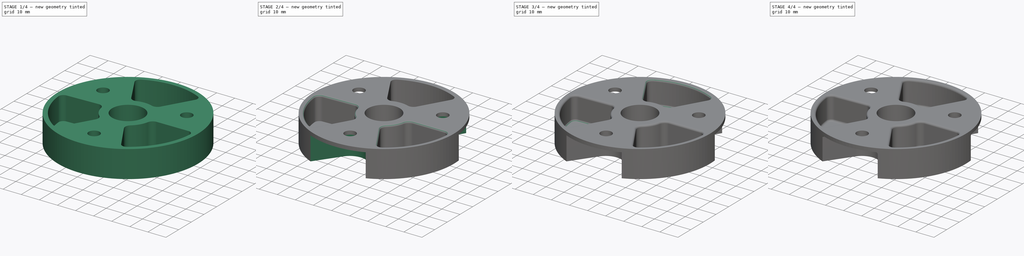
[diagram: build sequence overview — one tinted view per stage of 4, left to right]
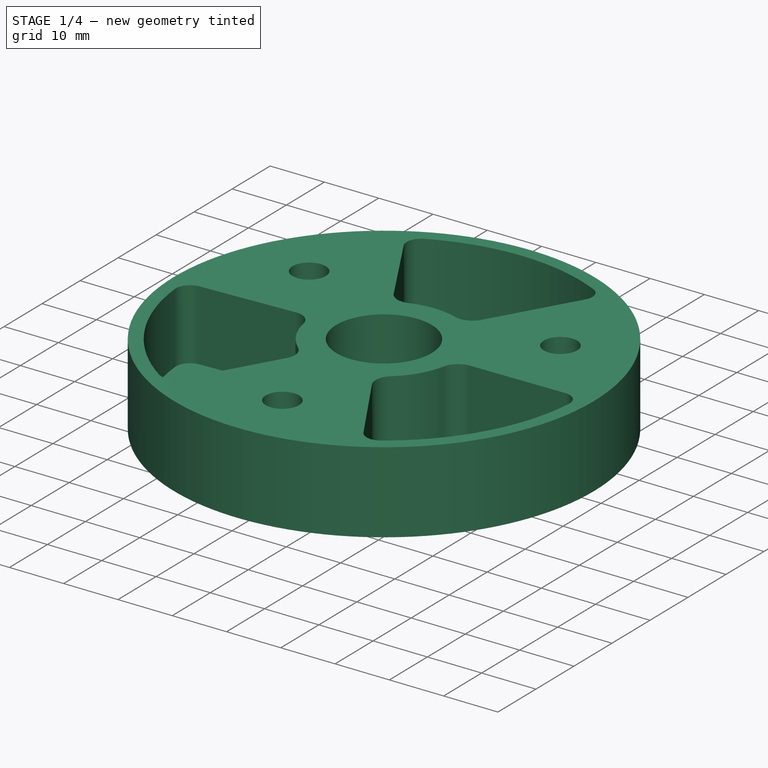
[diagram: stage 1 of 4 — iso view after this stage's code; geometry added in this stage tinted green]
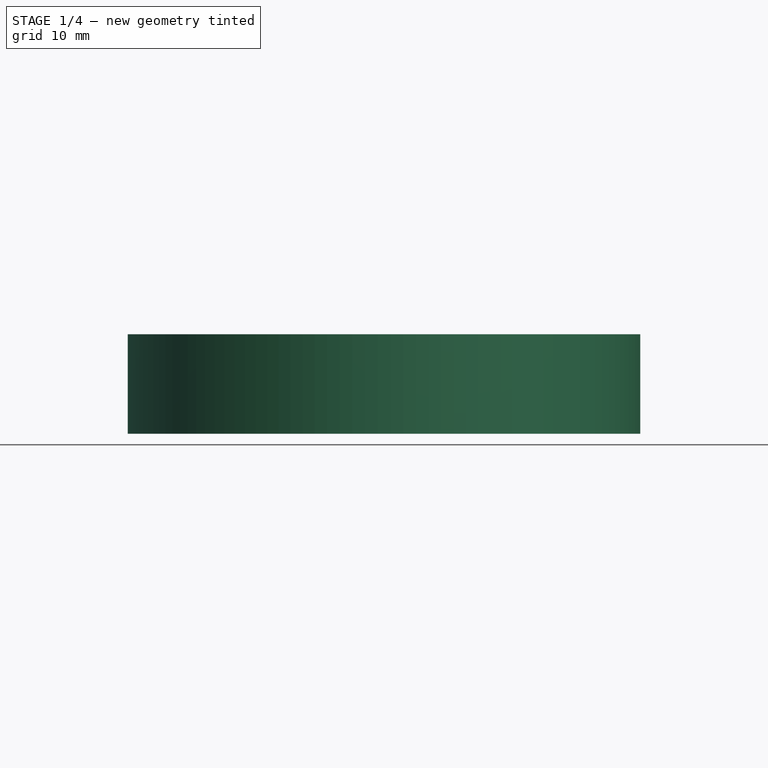
[diagram: stage 1 of 4 — front view after this stage's code; geometry added in this stage tinted green]
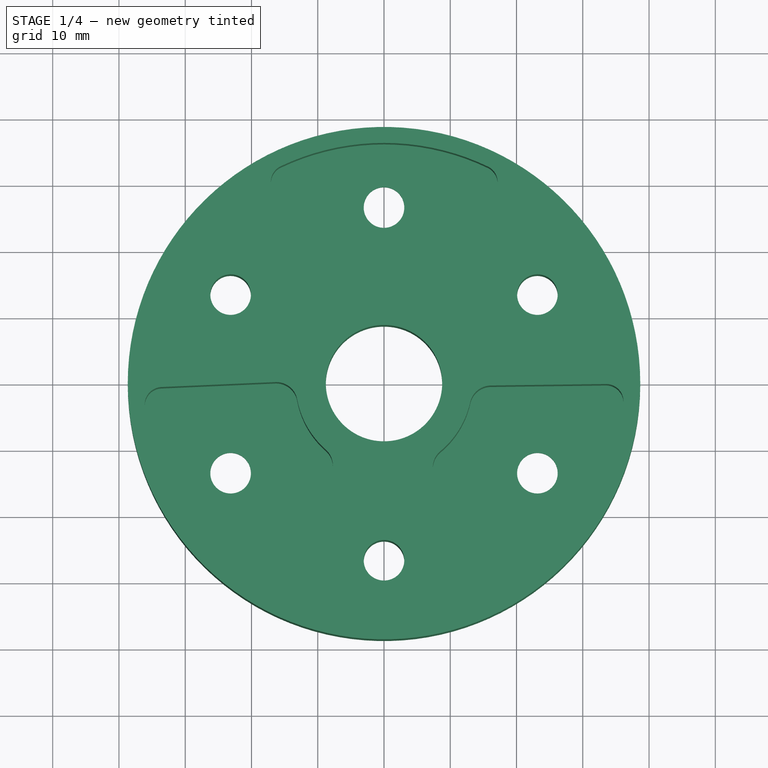
[diagram: stage 1 of 4 — top view after this stage's code; geometry added in this stage tinted green]
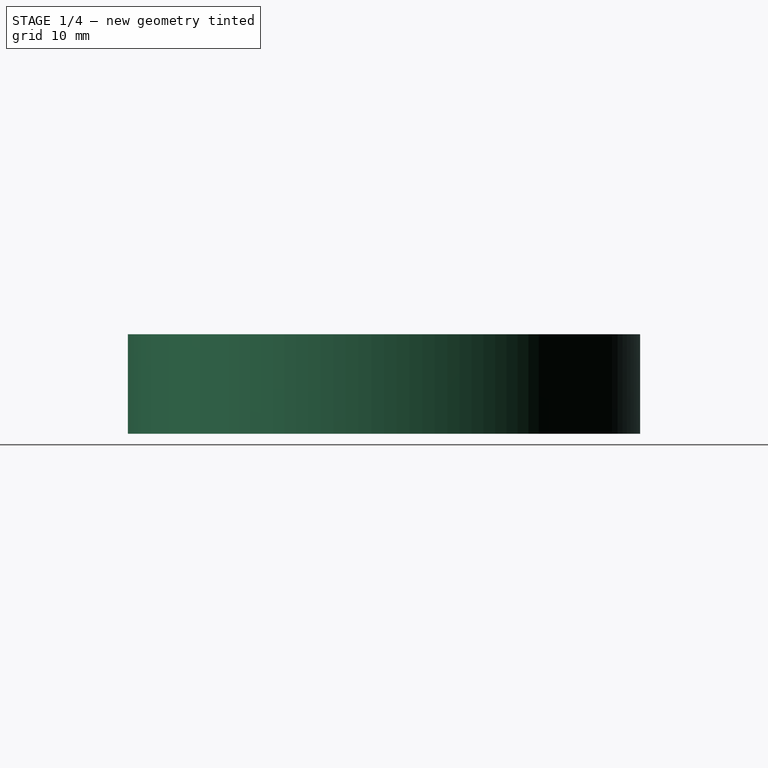
[diagram: stage 1 of 4 — right view after this stage's code; geometry added in this stage tinted green]
FCSTD DOCUMENT  (FreeCAD 0.21R33771 (Git))
Label: ex72
License: All rights reserved
LicenseURL: https://en.wikipedia.org/wiki/All_rights_reserved
objects: PartDesign::Fillet×9, Sketcher::SketchObject×6, PartDesign::Pocket×4, PartDesign::Pad×1, PartDesign::Body×1
note: 35 computed .brp shape members not serialized (recipe doc carries the construction recipe); baked Part::Feature solids carry a one-line shape summary decoded from their .brp

FEATURE [Sketcher::SketchObject] Sketch
  FullyConstrained = false
  MapMode = 5
  Support = -> [XY_Plane]
  sketch-geometry (1):
    g0: Circle CenterX=0 CenterY=0 CenterZ=0 NormalX=0 NormalY=0 NormalZ=1 AngleXU=0 Radius=38.6711
  constraints (1):
    c: Coincident(g0,g-1)
FEATURE [PartDesign::Pad] Pad
  Direction = (0,0,1)
  Length = 15
  Length2 = 10
  Profile = -> Sketch
  ReferenceAxis = -> Sketch [N_Axis]
  Type = 0
FEATURE [Sketcher::SketchObject] Sketch001
  FullyConstrained = false
  MapMode = 5
  Placement = pos=(0,0,15) rot=(0,0,1;0rad)
  Support = -> [Pad]
  sketch-geometry (13):
    g0: LineSegment StartX=23.15 StartY=-13.3657 StartZ=0 EndX=23.15 EndY=13.3657 EndZ=0
    g1: LineSegment StartX=23.15 StartY=13.3657 StartZ=0 EndX=0 EndY=26.7313 EndZ=0
    g2: LineSegment StartX=0 StartY=26.7313 StartZ=0 EndX=-23.15 EndY=13.3657 EndZ=0
    g3: LineSegment StartX=-23.15 StartY=13.3657 StartZ=0 EndX=-23.15 EndY=-13.3657 EndZ=0
    g4: LineSegment StartX=-23.15 StartY=-13.3657 StartZ=0 EndX=0 EndY=-26.7313 EndZ=0
    g5: LineSegment StartX=0 StartY=-26.7313 StartZ=0 EndX=23.15 EndY=-13.3657 EndZ=0
    g6: Circle CenterX=0 CenterY=0 CenterZ=0 NormalX=0 NormalY=0 NormalZ=1 AngleXU=0 Radius=26.7313
    g7: Circle CenterX=-23.15 CenterY=13.3657 CenterZ=0 NormalX=0 NormalY=0 NormalZ=1 AngleXU=0 Radius=3.06241
    g8: Circle CenterX=0 CenterY=26.7313 CenterZ=0 NormalX=0 NormalY=0 NormalZ=1 AngleXU=0 Radius=3.06241
    g9: Circle CenterX=23.15 CenterY=13.3657 CenterZ=0 NormalX=0 NormalY=0 NormalZ=1 AngleXU=0 Radius=3.06241
    g10: Circle CenterX=23.15 CenterY=-13.3657 CenterZ=0 NormalX=0 NormalY=0 NormalZ=1 AngleXU=0 Radius=3.06241
    g11: Circle CenterX=0 CenterY=-26.7313 CenterZ=0 NormalX=0 NormalY=0 NormalZ=1 AngleXU=0 Radius=3.06241
    g12: Circle CenterX=-23.15 CenterY=-13.3657 CenterZ=0 NormalX=0 NormalY=0 NormalZ=1 AngleXU=0 Radius=3.06241
  constraints (26):
    c: Coincident(g0,g1)
    c: Coincident(g1,g2)
    c: Coincident(g2,g3)
    c: Coincident(g3,g4)
    c: Coincident(g4,g5)
    c: Coincident(g5,g0)
    c: Equal(g0, g1-g5) x5
    c: PointOnObject(g0,g6)
    c: PointOnObject(g1,g6)
    c: PointOnObject(g2,g6)
    c: PointOnObject(g3,g6)
    c: PointOnObject(g4,g6)
    c: PointOnObject(g5,g6)
    c: Coincident(g6,g-1)
    c: Coincident(g7,g2)
    c: Coincident(g8,g1)
    c: Coincident(g9,g0)
    c: Coincident(g10,g0)
    c: Coincident(g11,g4)
    c: Coincident(g12,g3)
    c: Equal(g12,g7)
    c: Equal(g7,g8)
    c: Equal(g8,g9)
    c: Equal(g9,g10)
    c: Equal(g10,g11)
    c: PointOnObject(g8,g-2)
FEATURE [PartDesign::Pocket] Pocket
  BaseFeature = -> Pad
  Direction = (0,0,-1)
  Length = 5
  Length2 = 5
  Profile = -> Sketch001
  ReferenceAxis = -> Sketch001 [N_Axis]
  Type = 1
FEATURE [Sketcher::SketchObject] Sketch002
  FullyConstrained = false
  MapMode = 5
  Placement = pos=(0,0,15) rot=(0,0,1;0rad)
  Support = -> [Pocket]
  sketch-geometry (24):
    g0: ArcOfCircle CenterX=0 CenterY=0 CenterZ=0 NormalX=0 NormalY=0 NormalZ=1 AngleXU=0 Radius=13.3346 StartAngle=3.32657 EndAngle=3.99086
    g1: ArcOfCircle CenterX=0 CenterY=0 CenterZ=0 NormalX=0 NormalY=0 NormalZ=1 AngleXU=0 Radius=36.26 StartAngle=3.23728 EndAngle=4.10921
    g2: LineSegment StartX=8.14916 StartY=14.0426 StartZ=0 EndX=16.7969 EndY=29.0208 EndZ=0
    g3: LineSegment StartX=-8.06535 StartY=14.0711 StartZ=0 EndX=-16.7182 EndY=29.0583 EndZ=0
    g4: LineSegment StartX=-16.4003 StartY=0.162494 StartZ=0 EndX=-33.5919 EndY=-0.586814 EndZ=0
    g5: LineSegment StartX=-8.14866 StartY=-14.0244 StartZ=0 EndX=-16.8012 EndY=-29.011 EndZ=0
    g6: LineSegment StartX=16.1117 StartY=-0.358575 StartZ=0 EndX=33.4834 EndY=-0.130577 EndZ=0
    g7: LineSegment StartX=16.6376 StartY=-29.1646 StartZ=0 EndX=7.82609 EndY=-14.355 EndZ=0
    g8: ArcOfCircle CenterX=0 CenterY=0 CenterZ=0 NormalX=0 NormalY=0 NormalZ=1 AngleXU=0 Radius=36.26 StartAngle=1.12436 EndAngle=2.01464
    g9: ArcOfCircle CenterX=0 CenterY=0 CenterZ=0 NormalX=0 NormalY=0 NormalZ=1 AngleXU=0 Radius=36.26 StartAngle=5.30904 EndAngle=6.20105
    g10: ArcOfCircle CenterX=0 CenterY=0 CenterZ=0 NormalX=0 NormalY=0 NormalZ=1 AngleXU=0 Radius=13.3346 StartAngle=1.24014 EndAngle=1.8961
    g11: ArcOfCircle CenterX=0 CenterY=0 CenterZ=0 NormalX=0 NormalY=0 NormalZ=1 AngleXU=0 Radius=13.3346 StartAngle=5.40655 EndAngle=6.06589
    g12: ArcOfCircle CenterX=16.1538 CenterY=-3.56645 CenterZ=0 NormalX=0 NormalY=0 NormalZ=1 AngleXU=0 Radius=3.20815 StartAngle=1.58392 EndAngle=2.9243
    g13: ArcOfCircle CenterX=10.5831 CenterY=-12.7146 CenterZ=0 NormalX=0 NormalY=0 NormalZ=1 AngleXU=0 Radius=3.20815 StartAngle=2.26496 EndAngle=3.67832
    g14: ArcOfCircle CenterX=33.5179 CenterY=-2.75907 CenterZ=0 NormalX=0 NormalY=0 NormalZ=1 AngleXU=0 Radius=2.62872 StartAngle=6.20105 EndAngle=7.86711
    g15: ArcOfCircle CenterX=18.8967 CenterY=-27.8205 CenterZ=0 NormalX=0 NormalY=0 NormalZ=1 AngleXU=0 Radius=2.62872 StartAngle=3.67832 EndAngle=5.30904
    g16: ArcOfCircle CenterX=-33.4774 CenterY=-3.21304 CenterZ=0 NormalX=0 NormalY=0 NormalZ=1 AngleXU=0 Radius=2.62872 StartAngle=1.61435 EndAngle=3.23728
    g17: ArcOfCircle CenterX=-19.0777 CenterY=-27.6966 CenterZ=0 NormalX=0 NormalY=0 NormalZ=1 AngleXU=0 Radius=2.62872 StartAngle=4.10921 EndAngle=5.75959
    g18: ArcOfCircle CenterX=-10.927 CenterY=-12.4203 CenterZ=0 NormalX=0 NormalY=0 NormalZ=1 AngleXU=0 Radius=3.20815 StartAngle=5.75959 EndAngle=7.13246
    g19: ArcOfCircle CenterX=-16.2606 CenterY=-3.04261 CenterZ=0 NormalX=0 NormalY=0 NormalZ=1 AngleXU=0 Radius=3.20815 StartAngle=0.184977 EndAngle=1.61435
    g20: ArcOfCircle CenterX=-14.4417 CenterY=30.3727 CenterZ=0 NormalX=0 NormalY=0 NormalZ=1 AngleXU=0 Radius=2.62872 StartAngle=2.01464 EndAngle=3.66519
    g21: ArcOfCircle CenterX=-5.28702 CenterY=15.6752 CenterZ=0 NormalX=0 NormalY=0 NormalZ=1 AngleXU=0 Radius=3.20815 StartAngle=3.66519 EndAngle=5.03769
    g22: ArcOfCircle CenterX=5.37082 CenterY=15.6467 CenterZ=0 NormalX=0 NormalY=0 NormalZ=1 AngleXU=0 Radius=3.20815 StartAngle=4.38173 EndAngle=5.75959
    g23: ArcOfCircle CenterX=14.5203 CenterY=30.3352 CenterZ=0 NormalX=0 NormalY=0 NormalZ=1 AngleXU=0 Radius=2.62872 StartAngle=5.75959 EndAngle=7.40755
  constraints (49):
    c: Coincident(g0,g-1)
    c: Coincident(g1,g0)
    c: Angle(g2,g-2) = 0.523599
    c: Angle(g-2,g3) = 0.523599
    c: Angle(g-2,g5) = 2.61799
    c: Angle(g7,g6) = 1.0472
    c: Radius(g1) = 36.26
    c: Equal(g1,g8)
    c: Coincident(g1,g8)
    c: Equal(g1,g9)
    c: Coincident(g1,g9)
    c: Equal(g0,g10)
    c: Coincident(g0,g10)
    c: Equal(g0,g11)
    c: Coincident(g0,g11)
    c: Tangent(g11,g12) = 1.5708
    c: Tangent(g6,g12) = 1.5708
    c: Tangent(g7,g13) = 1.5708
    c: Tangent(g11,g13) = 1.5708
    c: Tangent(g9,g14) = -1.5708
    c: Tangent(g6,g14) = 1.5708
    c: Tangent(g7,g15) = 1.5708
    c: Tangent(g9,g15) = -1.5708
    c: Tangent(g4,g16) = -1.5708
    c: Tangent(g1,g16) = -1.5708
    c: Tangent(g1,g17) = -1.5708
    c: Tangent(g5,g17) = 1.5708
    c: Tangent(g0,g18) = 1.5708
    c: Tangent(g5,g18) = 1.5708
    c: Tangent(g4,g19) = -1.5708
    c: Tangent(g0,g19) = 1.5708
    c: Tangent(g8,g20) = -1.5708
    c: Tangent(g3,g20) = 1.5708
    c: Tangent(g3,g21) = 1.5708
    c: Tangent(g10,g21) = 1.5708
    c: Tangent(g2,g22) = -1.5708
    c: Tangent(g10,g22) = 1.5708
    c: Tangent(g8,g23) = -1.5708
    c: Tangent(g2,g23) = -1.5708
    c: Equal(g20,g23)
    c: Equal(g21,g22)
    c: Equal(g19,g18)
    c: Equal(g18,g13)
    c: Equal(g13,g12)
    c: Equal(g12,g22)
    c: Equal(g16,g17)
    c: Equal(g17,g15)
    c: Equal(g15,g14)
    c: Equal(g14,g23)
FEATURE [Sketcher::SketchObject] Sketch003
  FullyConstrained = false
  MapMode = 5
  Placement = pos=(0,0,15) rot=(0,0,1;0rad)
  Support = -> [Pocket]
  sketch-geometry (8):
    g0: Circle CenterX=0 CenterY=0 CenterZ=0 NormalX=0 NormalY=0 NormalZ=1 AngleXU=0 Radius=12.8895
    g1: Circle CenterX=0 CenterY=0 CenterZ=0 NormalX=0 NormalY=0 NormalZ=1 AngleXU=0 Radius=36.26
    g2: LineSegment StartX=0 StartY=0 StartZ=0 EndX=18.13 EndY=31.4021 EndZ=0
    g3: LineSegment StartX=0 StartY=0 StartZ=0 EndX=-18.13 EndY=31.4021 EndZ=0
    g4: LineSegment StartX=0 StartY=0 StartZ=0 EndX=-36.26 EndY=0 EndZ=0
    g5: LineSegment StartX=0 StartY=0 StartZ=0 EndX=-18.13 EndY=-31.4021 EndZ=0
    g6: LineSegment StartX=0 StartY=0 StartZ=0 EndX=36.26 EndY=0 EndZ=0
    g7: LineSegment StartX=18.13 StartY=-31.4021 StartZ=0 EndX=0 EndY=0 EndZ=0
  constraints (21):
    c: Coincident(g0,g-1)
    c: Coincident(g1,g0)
    c: Coincident(g2,g0)
    c: Coincident(g3,g0)
    c: Angle(g2,g-2) = 0.523599
    c: Angle(g-2,g3) = 0.523599
    c: Coincident(g4,g0)
    c: PointOnObject(g4,g-1)
    c: Coincident(g5,g0)
    c: Angle(g-2,g5) = 2.61799
    c: Coincident(g6,g0)
    c: PointOnObject(g6,g-1)
    c: Coincident(g7,g0)
    c: Angle(g7,g6) = 1.0472
    c: Radius(g1) = 36.26
    c: PointOnObject(g2,g1)
    c: PointOnObject(g3,g1)
    c: PointOnObject(g4,g1)
    c: PointOnObject(g5,g1)
    c: PointOnObject(g7,g1)
    c: PointOnObject(g6,g1)
FEATURE [PartDesign::Pocket] Pocket001
  BaseFeature = -> Pocket
  Direction = (0,0,-1)
  Length = 13
  Length2 = 5
  Profile = -> Sketch002
  ReferenceAxis = -> Sketch002 [N_Axis]
  Type = 0
FEATURE [Sketcher::SketchObject] Sketch004
  FullyConstrained = false
  MapMode = 5
  Placement = pos=(0,0,15) rot=(0,0,1;0rad)
  Support = -> [Pocket001]
  sketch-geometry (1):
    g0: Circle CenterX=0 CenterY=0 CenterZ=0 NormalX=0 NormalY=0 NormalZ=1 AngleXU=0 Radius=8.7812
  constraints (1):
    c: Coincident(g0,g-1)
FEATURE [PartDesign::Pocket] Pocket002
  BaseFeature = -> Pocket001
  Direction = (0,0,-1)
  Length = 5
  Length2 = 5
  Profile = -> Sketch004
  ReferenceAxis = -> Sketch004 [N_Axis]
  Type = 1
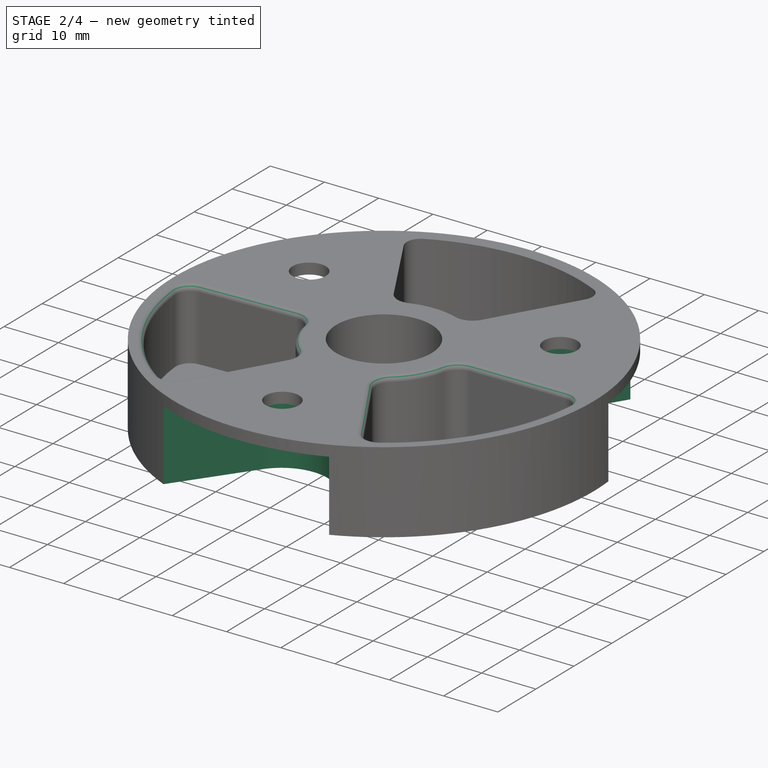
[diagram: stage 2 of 4 — iso view after this stage's code; geometry added in this stage tinted green]
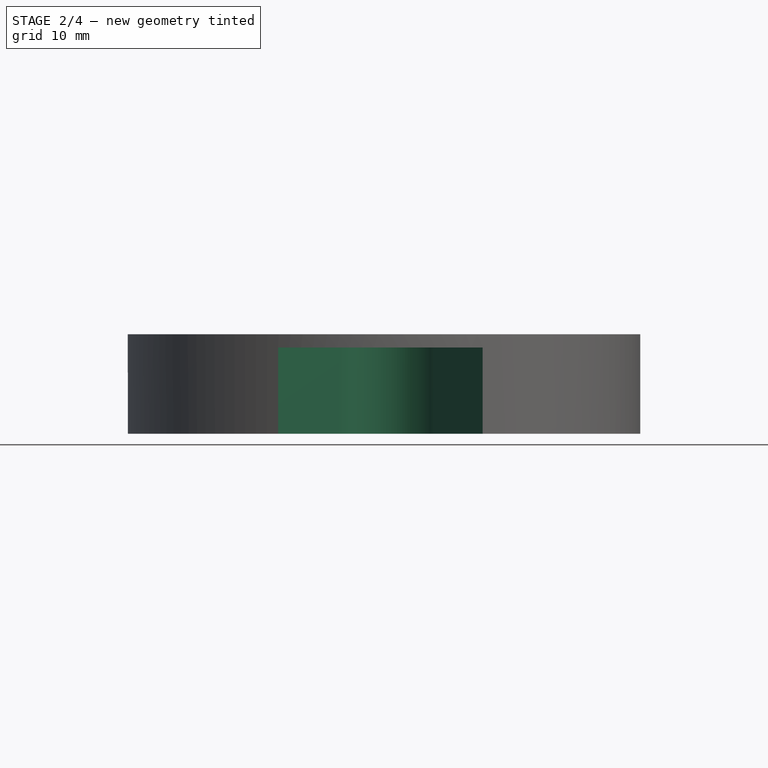
[diagram: stage 2 of 4 — front view after this stage's code; geometry added in this stage tinted green]
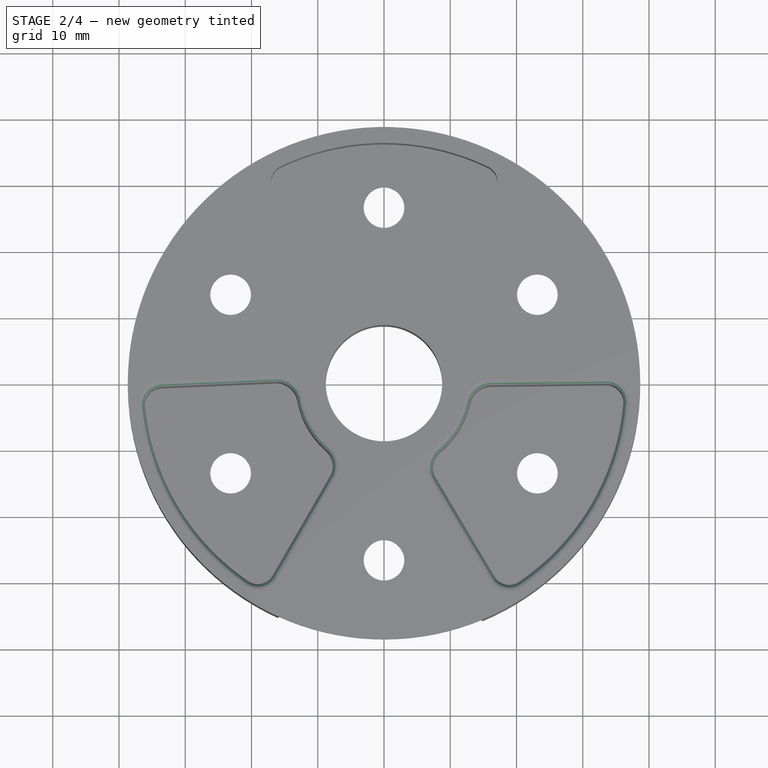
[diagram: stage 2 of 4 — top view after this stage's code; geometry added in this stage tinted green]
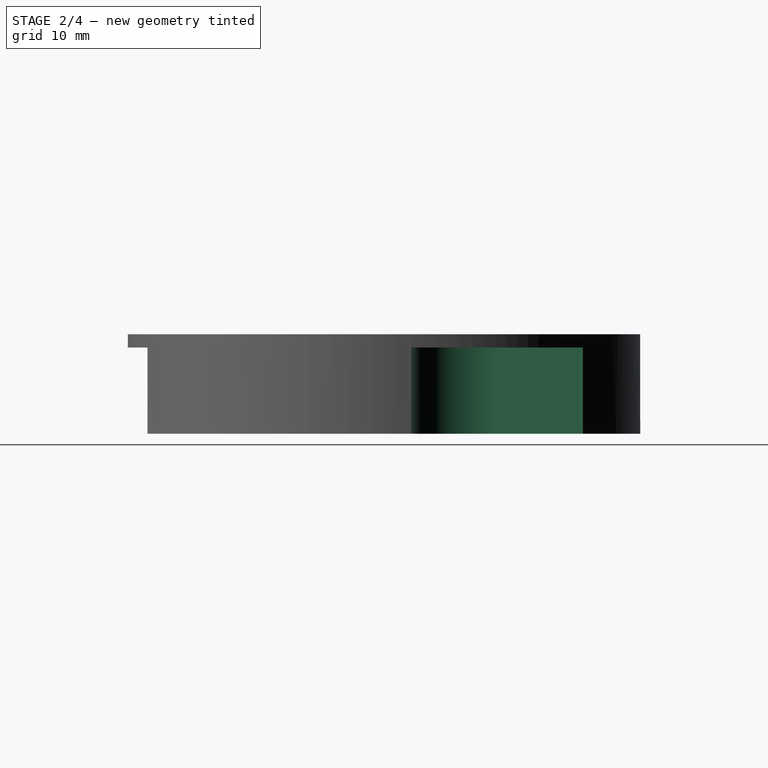
[diagram: stage 2 of 4 — right view after this stage's code; geometry added in this stage tinted green]
FEATURE [Sketcher::SketchObject] Sketch005
  AttachmentOffset = pos=(0,0,-2) rot=(0,0,1;0rad)
  FullyConstrained = false
  MapMode = 5
  Placement = pos=(0,0,13) rot=(0,0,1;0rad)
  Support = -> [Pad]
  sketch-geometry (19):
    g0: LineSegment StartX=23.2179 StartY=-13.9556 StartZ=0 EndX=23.8828 EndY=13.0148 EndZ=0
    g1: LineSegment StartX=23.8828 StartY=13.0148 StartZ=0 EndX=0.924022 EndY=27.1831 EndZ=0
    g2: LineSegment StartX=-0.816683 StartY=27.9095 StartZ=0 EndX=-23.618 EndY=13.4893 EndZ=0
    g3: LineSegment StartX=-23.618 StartY=13.4893 StartZ=0 EndX=-23.618 EndY=-13.4893 EndZ=0
    g4: LineSegment StartX=-21.8833 StartY=-11.6098 StartZ=0 EndX=0.135827 EndY=-27.1984 EndZ=0
    g5: LineSegment StartX=0.135827 StartY=-27.1984 StartZ=0 EndX=23.4956 EndY=-13.7015 EndZ=0
    g6: Circle CenterX=0 CenterY=0 CenterZ=0 NormalX=0 NormalY=0 NormalZ=1 AngleXU=0 Radius=27.1988
    g7: ArcOfCircle CenterX=-23.618 CenterY=13.4893 CenterZ=0 NormalX=0 NormalY=0 NormalZ=1 AngleXU=0 Radius=8.51469 StartAngle=4.71239 EndAngle=6.84711
    g8: ArcOfCircle CenterX=23.8828 CenterY=13.0148 CenterZ=0 NormalX=0 NormalY=0 NormalZ=1 AngleXU=0 Radius=8.51469 StartAngle=2.55253 EndAngle=4.68774
    g9: ArcOfCircle CenterX=0.135827 CenterY=-27.1984 CenterZ=0 NormalX=0 NormalY=0 NormalZ=1 AngleXU=0 Radius=8.51469 StartAngle=0.523926 EndAngle=2.52555
    g10: LineSegment StartX=-16.4217 StartY=18.0405 StartZ=0 EndX=-28.4228 EndY=37.0167 EndZ=0
    g11: LineSegment StartX=-23.618 StartY=4.97461 StartZ=0 EndX=-46.4041 EndY=4.97461 EndZ=0
    g12: LineSegment StartX=16.8031 StartY=17.7454 StartZ=0 EndX=28.61 EndY=36.8724 EndZ=0
    g13: LineSegment StartX=23.673 StartY=4.50269 StartZ=0 EndX=46.5035 EndY=3.9399 EndZ=0
    g14: LineSegment StartX=-6.8136 StartY=-22.2785 StartZ=0 EndX=-20.6977 EndY=-41.89 EndZ=0
    g15: LineSegment StartX=7.50837 StartY=-22.9387 StartZ=0 EndX=18.9082 EndY=-42.6688 EndZ=0
    g16: LineSegment StartX=-28.4228 StartY=37.0167 StartZ=0 EndX=-46.4041 EndY=4.97461 EndZ=0
    g17: LineSegment StartX=-20.6977 StartY=-41.89 StartZ=0 EndX=18.9082 EndY=-42.6688 EndZ=0
    g18: LineSegment StartX=28.61 StartY=36.8724 StartZ=0 EndX=46.5035 EndY=3.9399 EndZ=0
  constraints (41):
    c: Coincident(g0,g1)
    c: Coincident(g2,g3)
    c: Coincident(g4,g5)
    c: Equal(g0, g1-g5) x5
    c: PointOnObject(g0,g6)
    c: PointOnObject(g1,g6)
    c: PointOnObject(g2,g6)
    c: PointOnObject(g3,g6)
    c: PointOnObject(g4,g6)
    c: PointOnObject(g5,g6)
    c: Coincident(g6,g-1)
    c: Coincident(g7,g2)
    c: Coincident(g8,g0)
    c: Coincident(g9,g4)
    c: Equal(g9,g8)
    c: Equal(g8,g7)
    c: PointOnObject(g10,g2)
    c: PointOnObject(g11,g3)
    c: Horizontal(g11)
    c: Tangent(g11,g7)
    c: Perpendicular(g3,g11)
    c: Perpendicular(g2,g10)
    c: PointOnObject(g13,g0)
    c: Perpendicular(g0,g13)
    c: PointOnObject(g13,g8)
    c: PointOnObject(g14,g4)
    c: PointOnObject(g15,g5)
    c: Perpendicular(g5,g15)
    c: Perpendicular(g4,g14)
    c: Coincident(g9,g15)
    c: Coincident(g9,g14)
    c: PointOnObject(g7,g3)
    c: Tangent(g7,g10) = -1.5708
    c: PointOnObject(g8,g0)
    c: Coincident(g12,g8)
    c: Coincident(g16,g10)
    c: Coincident(g16,g11)
    c: Coincident(g17,g14)
    c: Coincident(g18,g12)
    c: Coincident(g18,g13)
    c: Coincident(g15,g17)
FEATURE [PartDesign::Pocket] Pocket003
  BaseFeature = -> Pocket002
  Direction = (0,0,-1)
  Length = 18
  Length2 = 5
  Profile = -> Sketch005
  ReferenceAxis = -> Sketch005 [N_Axis]
  Type = 0
FEATURE [PartDesign::Fillet] Fillet
  Base = -> Pocket003 [Edge49,Edge47,Edge48,Edge50,Edge52,Edge54,Edge53,Edge51]
  BaseFeature = -> Pocket003
  Radius = 1
  SupportTransform = false
  UseAllEdges = false
FEATURE [PartDesign::Fillet] Fillet001
  Base = -> Fillet [Edge13,Edge15,Edge17,Edge19,Edge18,Edge16,Edge14,Edge12]
  BaseFeature = -> Fillet
  Radius = 1
  SupportTransform = false
  UseAllEdges = false
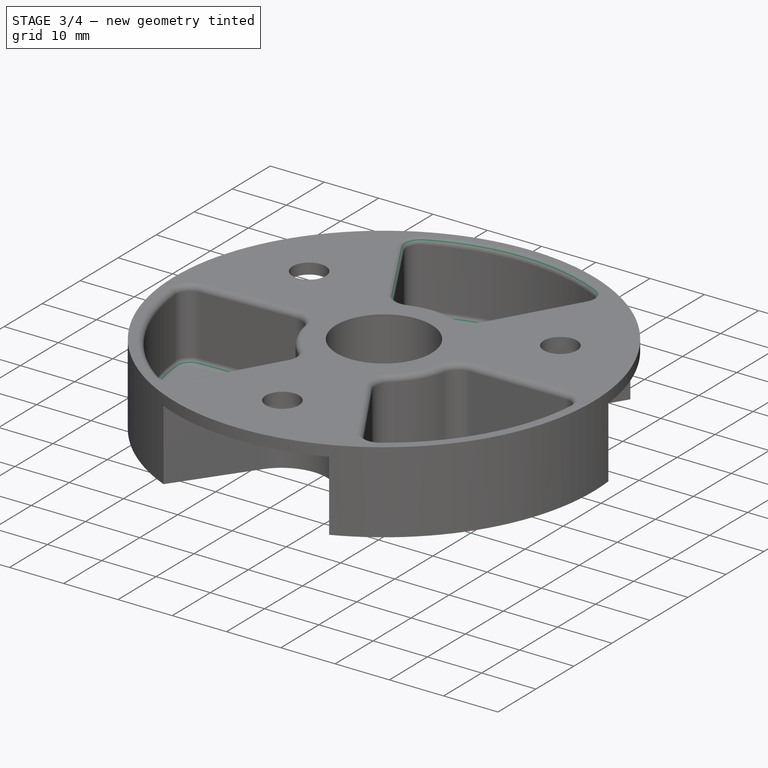
[diagram: stage 3 of 4 — iso view after this stage's code; geometry added in this stage tinted green]
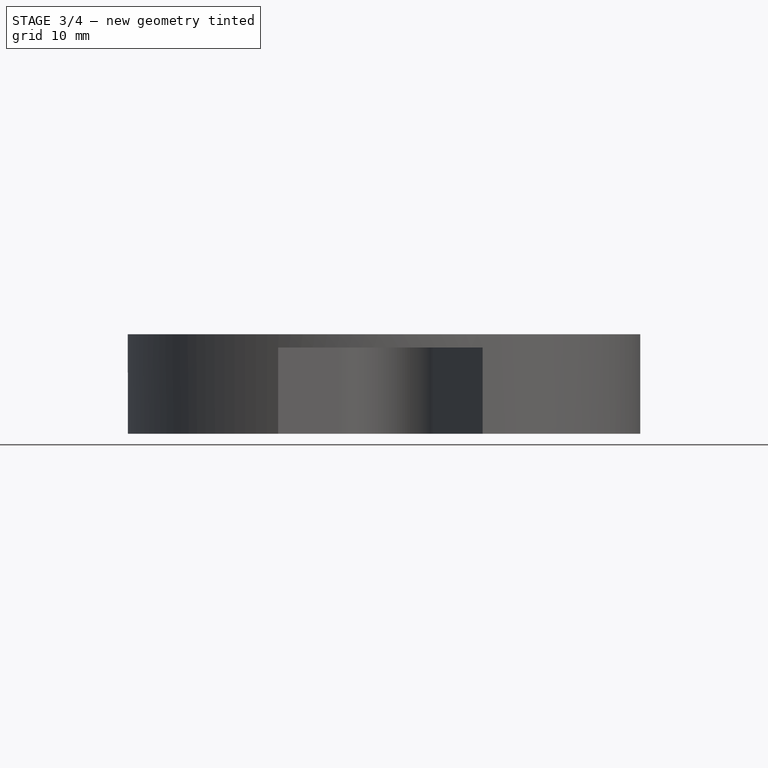
[diagram: stage 3 of 4 — front view after this stage's code; geometry added in this stage tinted green]
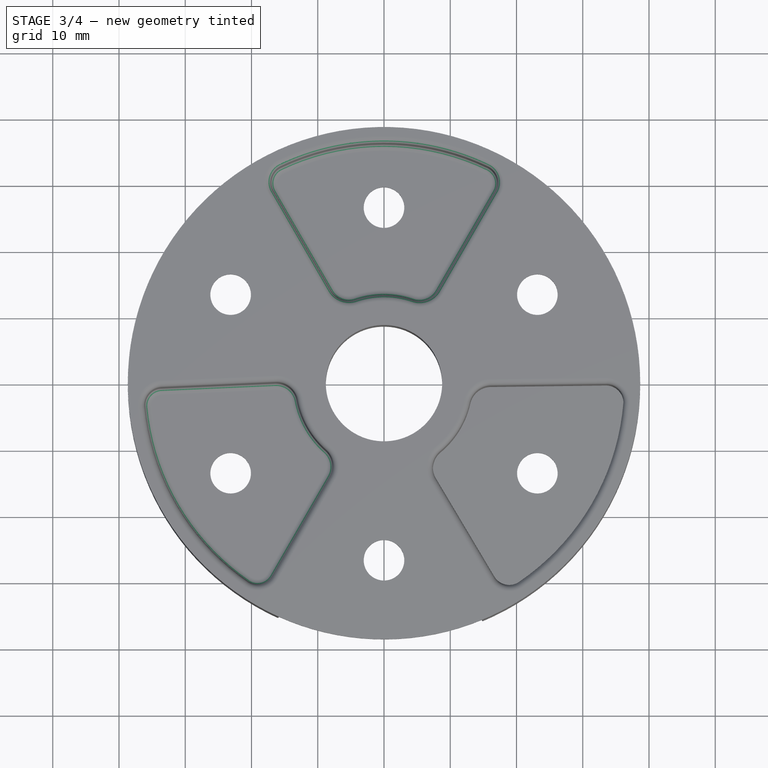
[diagram: stage 3 of 4 — top view after this stage's code; geometry added in this stage tinted green]
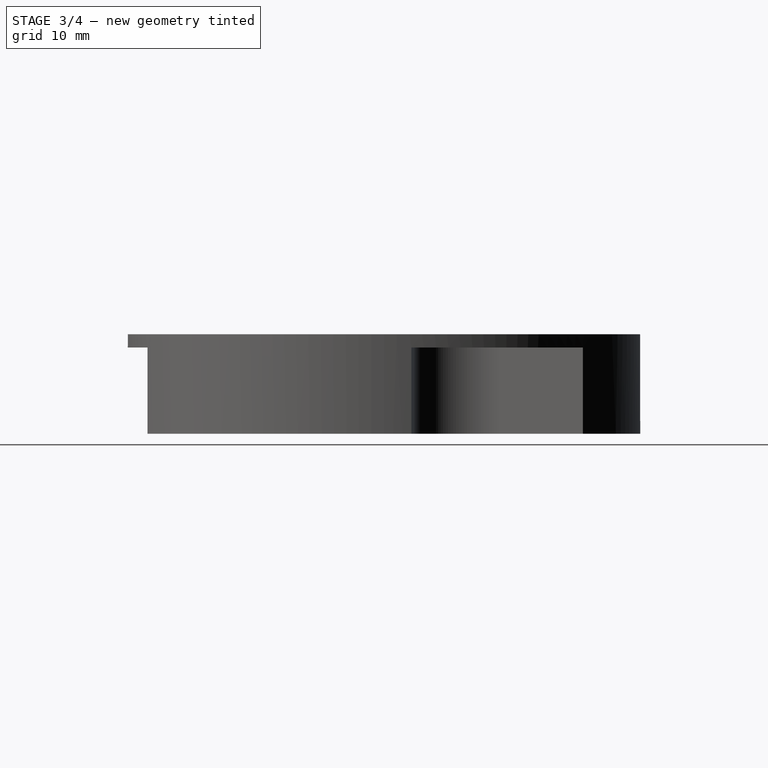
[diagram: stage 3 of 4 — right view after this stage's code; geometry added in this stage tinted green]
FEATURE [PartDesign::Fillet] Fillet002
  Base = -> Fillet001 [Edge28,Edge29,Edge27,Edge25,Edge23,Edge22,Edge24,Edge26]
  BaseFeature = -> Fillet001
  Radius = 1
  SupportTransform = false
  UseAllEdges = false
FEATURE [PartDesign::Fillet] Fillet003
  Base = -> Fillet002 [Edge106,Edge101,Edge104,Edge108,Edge115,Edge112,Edge114,Edge109]
  BaseFeature = -> Fillet002
  Radius = 1
  SupportTransform = false
  UseAllEdges = false
FEATURE [PartDesign::Fillet] Fillet004
  Base = -> Fillet003 [Edge163,Edge166,Edge169,Edge174,Edge177,Edge175,Edge171,Edge167]
  BaseFeature = -> Fillet003
  Radius = 1
  SupportTransform = false
  UseAllEdges = false
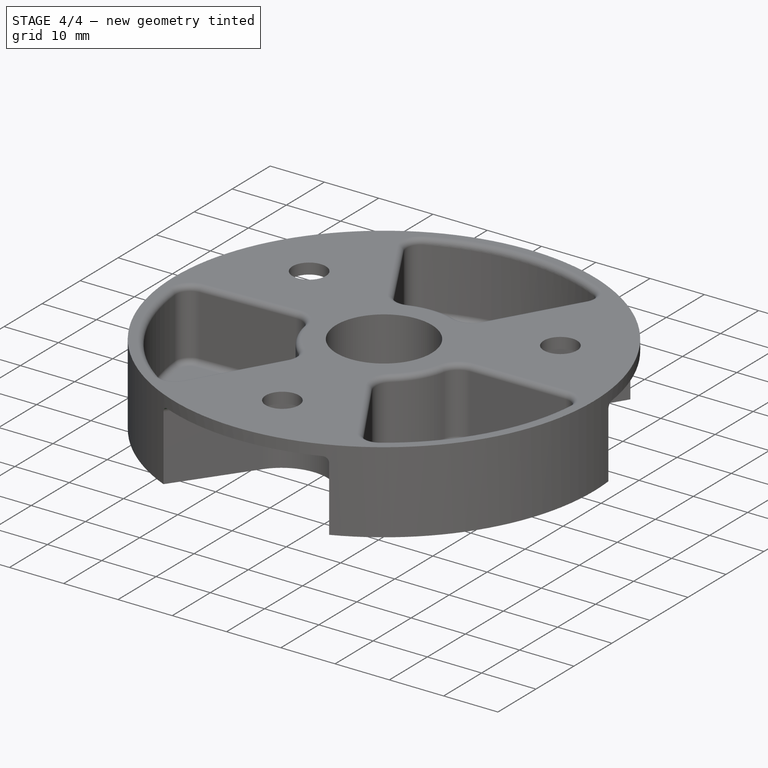
[diagram: stage 4 of 4 — iso view after this stage's code; geometry added in this stage tinted green]
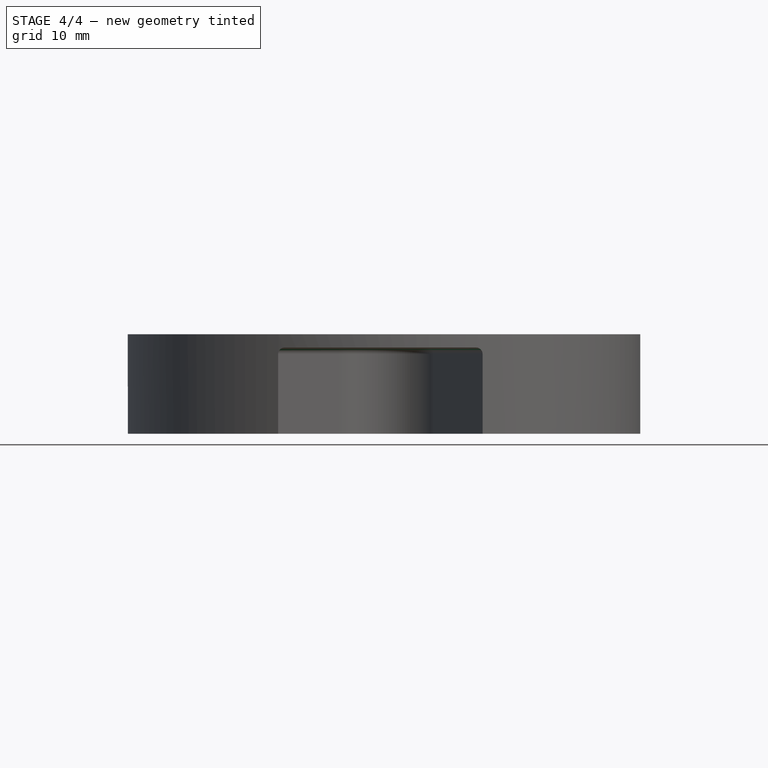
[diagram: stage 4 of 4 — front view after this stage's code; geometry added in this stage tinted green]
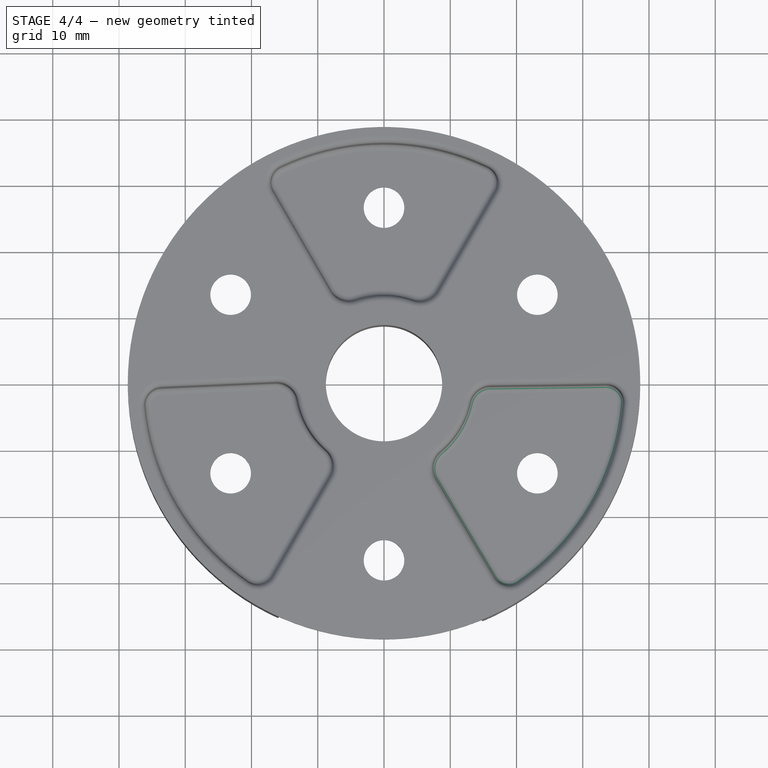
[diagram: stage 4 of 4 — top view after this stage's code; geometry added in this stage tinted green]
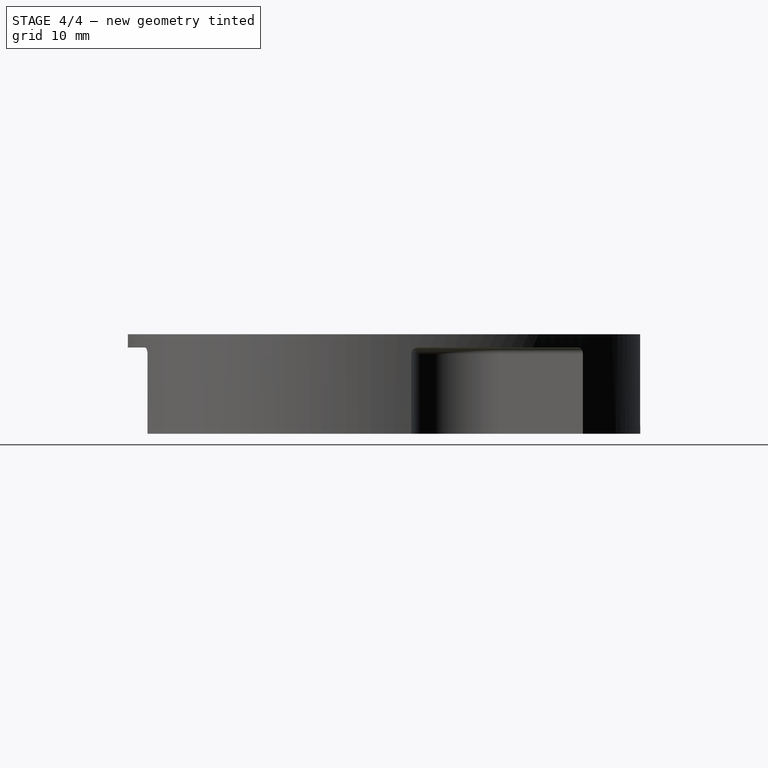
[diagram: stage 4 of 4 — right view after this stage's code; geometry added in this stage tinted green]
FEATURE [PartDesign::Fillet] Fillet005
  Base = -> Fillet004 [Edge163,Edge168,Edge171,Edge170,Edge165,Edge173,Edge177,Edge176]
  BaseFeature = -> Fillet004
  Radius = 1
  SupportTransform = false
  UseAllEdges = false
FEATURE [PartDesign::Fillet] Fillet006
  Base = -> Fillet005 [Edge188,Edge191,Edge190]
  BaseFeature = -> Fillet005
  Radius = 1
  SupportTransform = false
  UseAllEdges = false
FEATURE [PartDesign::Fillet] Fillet007
  Base = -> Fillet006 [Edge38,Edge43,Edge42]
  BaseFeature = -> Fillet006
  Radius = 1
  SupportTransform = false
  UseAllEdges = false
FEATURE [PartDesign::Fillet] Fillet008
  Base = -> Fillet007 [Edge55,Edge56,Edge52]
  BaseFeature = -> Fillet007
  Radius = 1
  SupportTransform = false
  UseAllEdges = false
FEATURE [PartDesign::Body] Body
  Group = -> [Sketch,Pad,Sketch001,Pocket,Sketch002,Sketch003,Pocket001,Sketch004,Pocket002,Sketch005,Pocket003,Fillet,Fillet001,Fillet002,Fillet003,Fillet004,Fillet005,Fillet006,Fillet007,Fillet008]
  Origin = -> Origin
  Tip = -> Fillet008
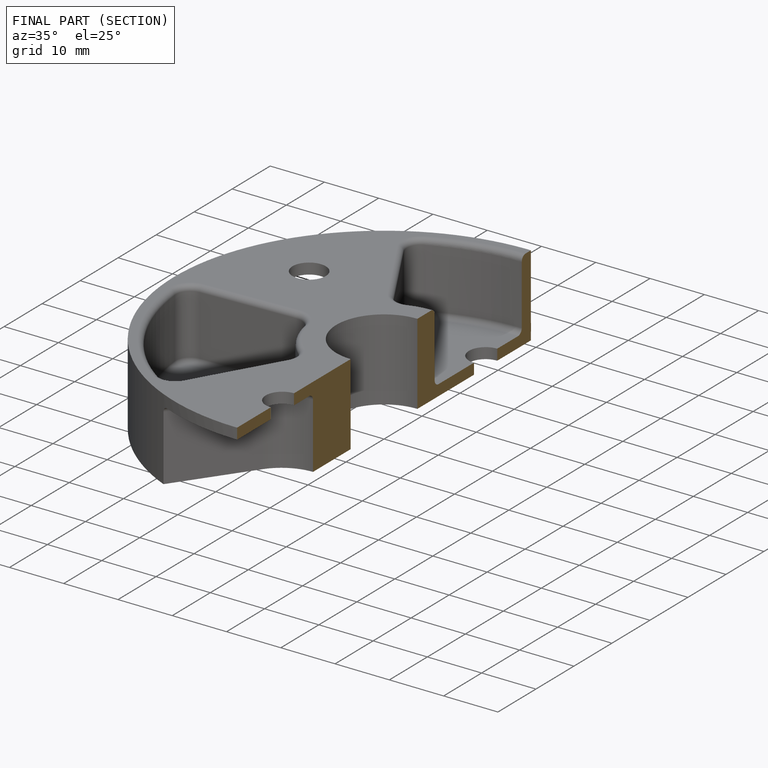
[diagram: finished part — half-section view (interior)]
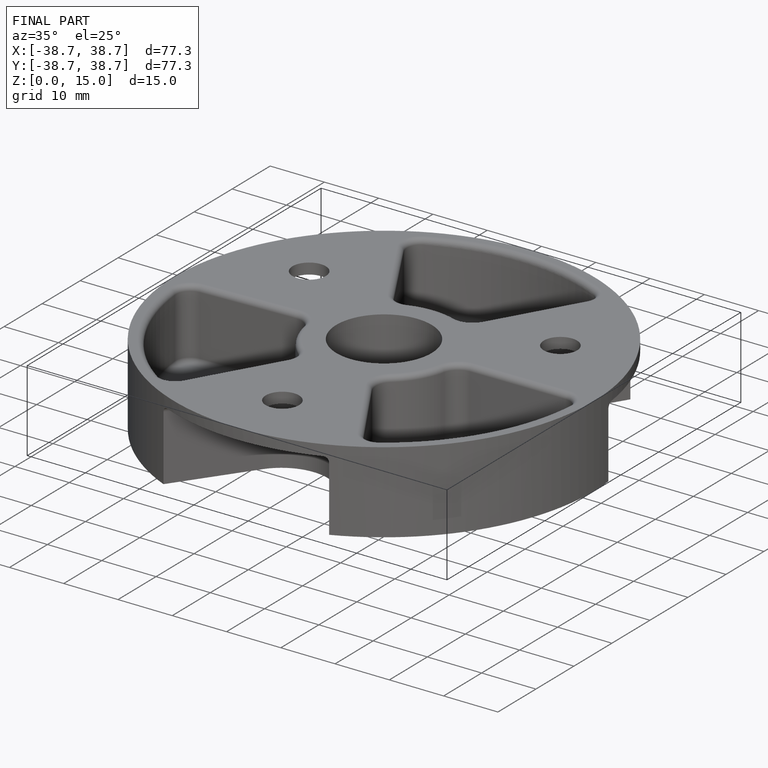
[diagram: finished part — iso view with bounding-box wireframe]
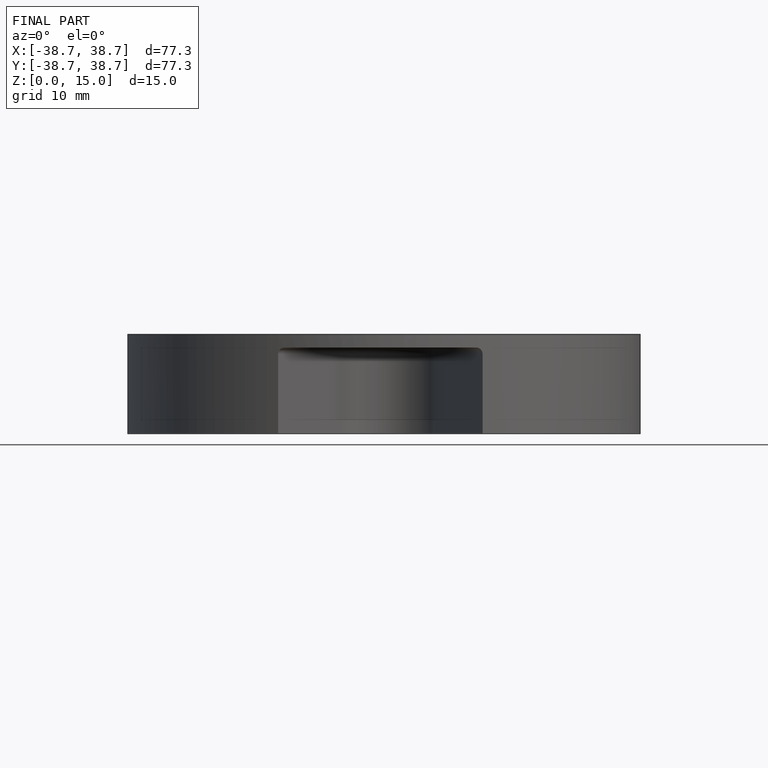
[diagram: finished part — front view with bounding-box wireframe]
